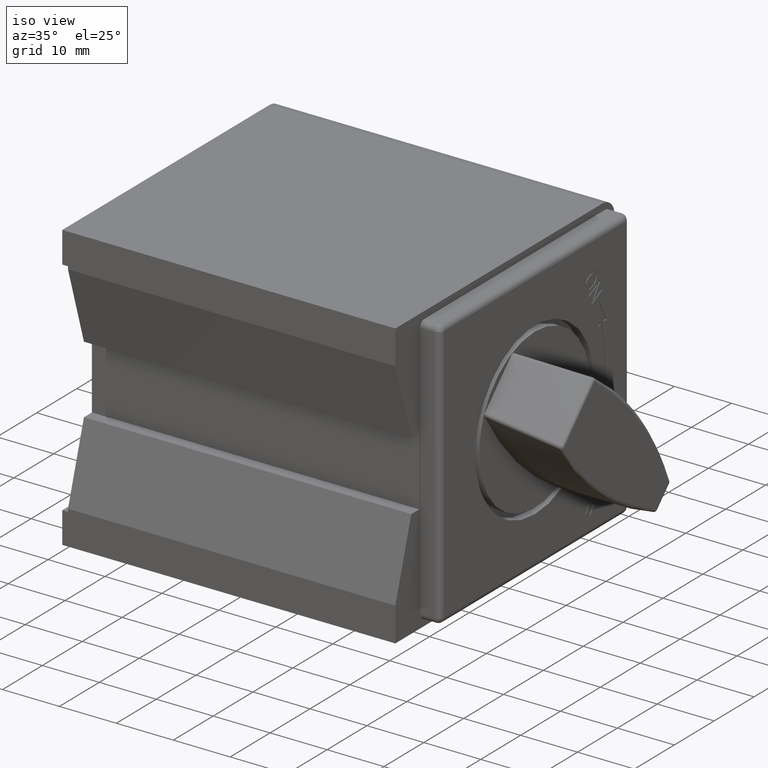
[diagram: clean part render]
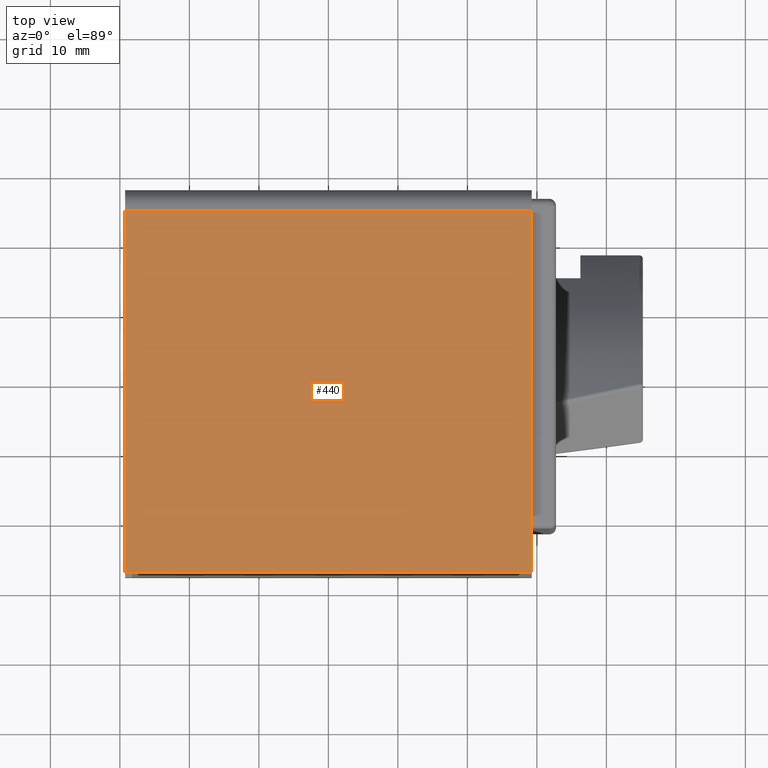
[diagram: tour spotlight — one face highlighted and labeled with its STEP entity id]
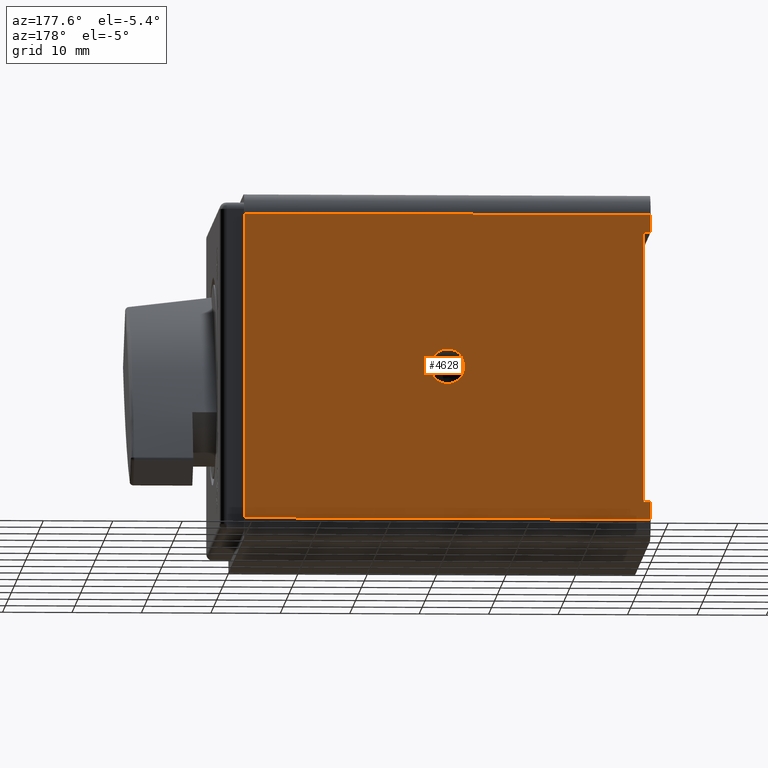
[diagram: tour spotlight — one face highlighted and labeled with its STEP entity id]
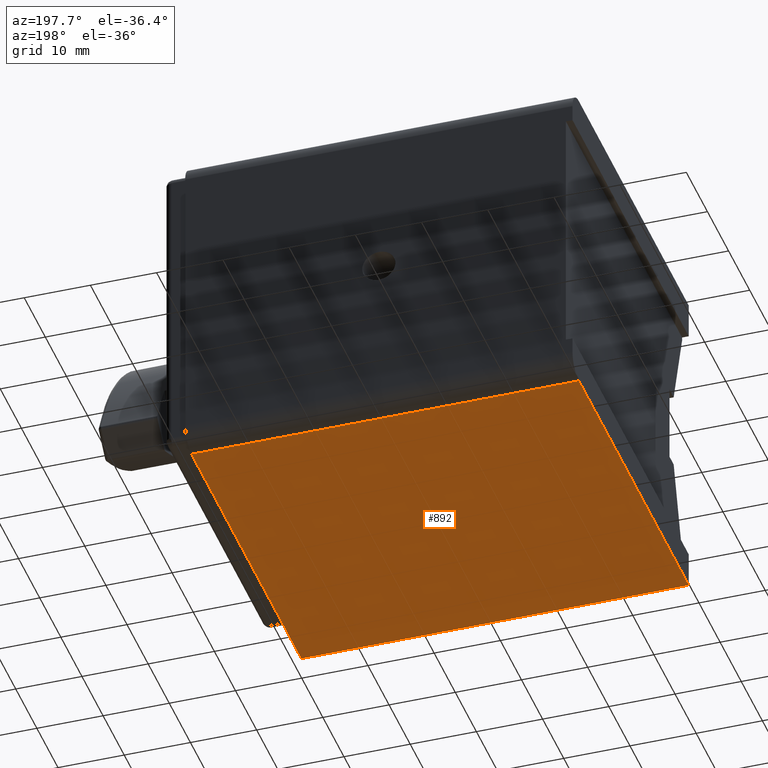
[diagram: tour spotlight — one face highlighted and labeled with its STEP entity id]
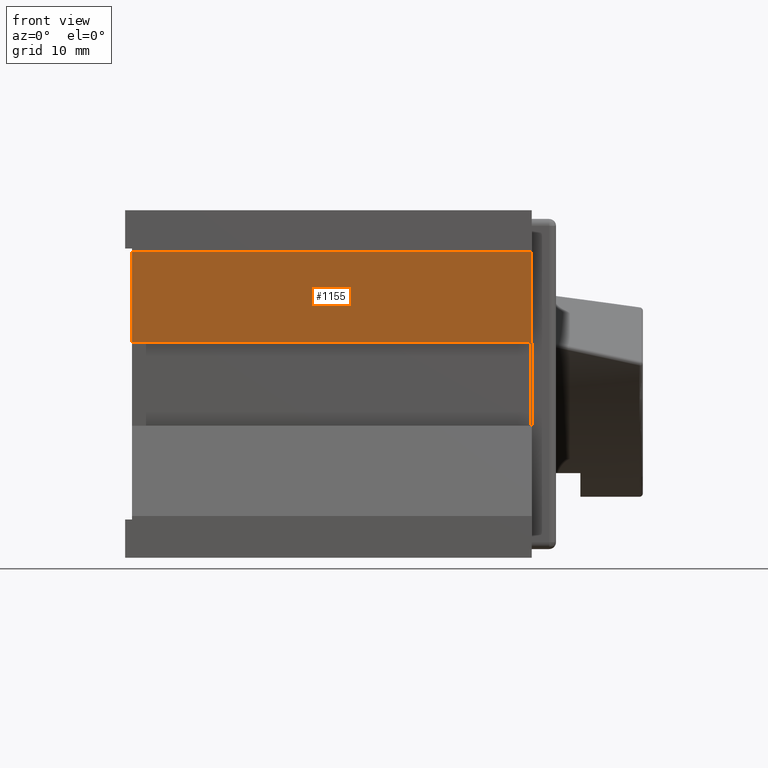
[diagram: tour spotlight — one face highlighted and labeled with its STEP entity id]
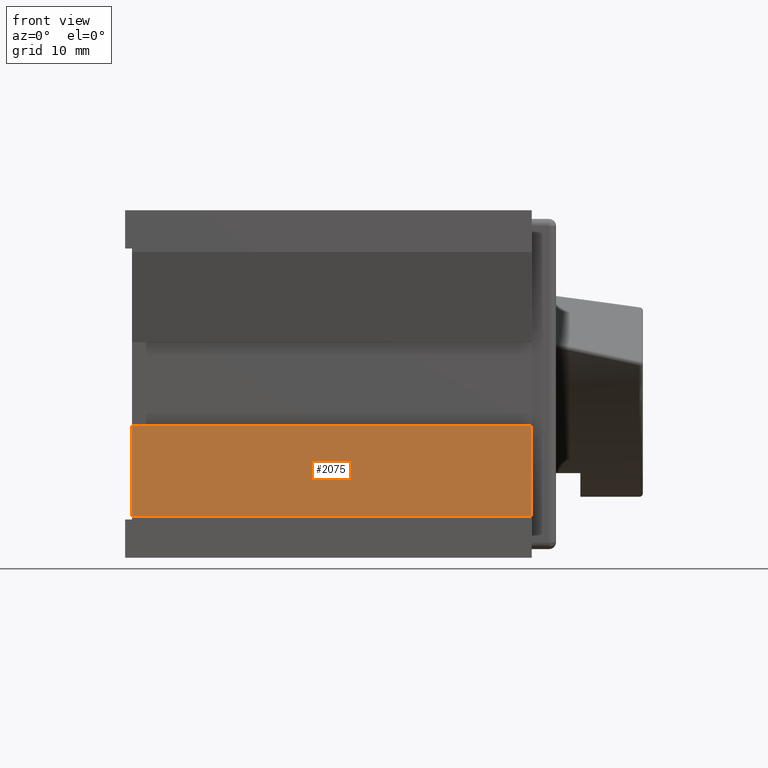
[diagram: tour spotlight — one face highlighted and labeled with its STEP entity id]
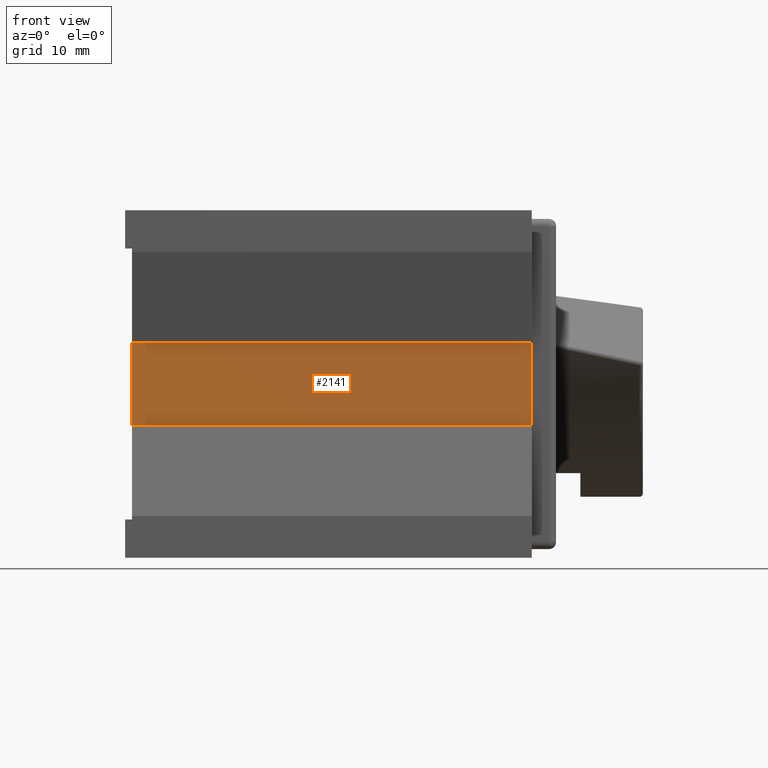
[diagram: tour spotlight — one face highlighted and labeled with its STEP entity id]
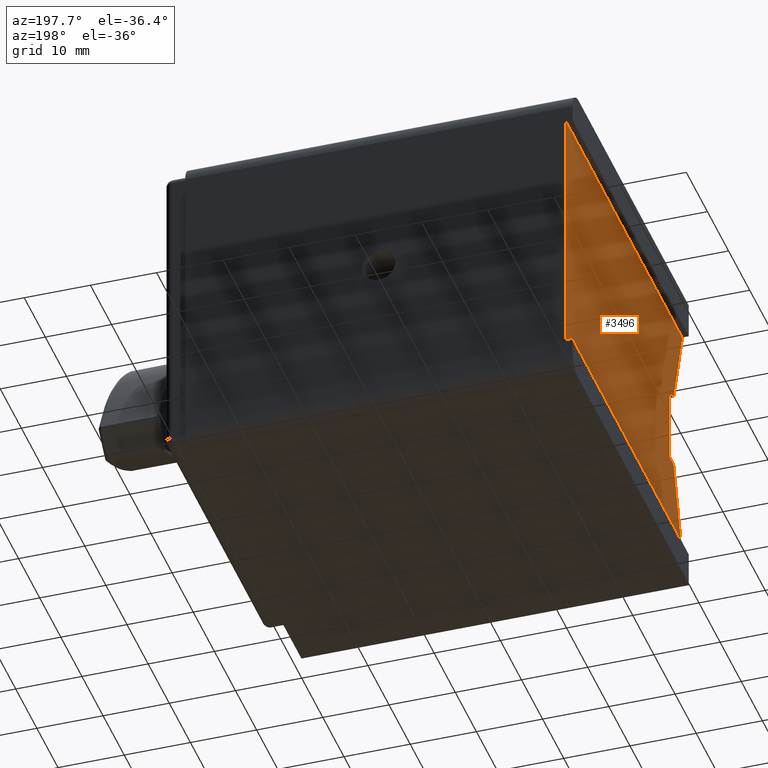
[diagram: tour spotlight — one face highlighted and labeled with its STEP entity id]
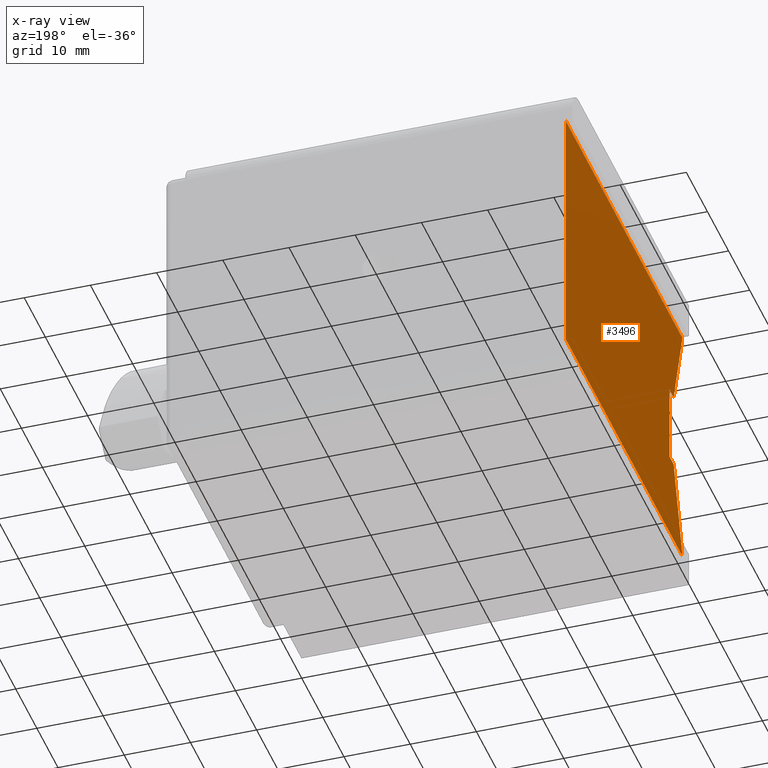
[diagram: x-ray of the same camera — body ghosted, this tour face saturated]
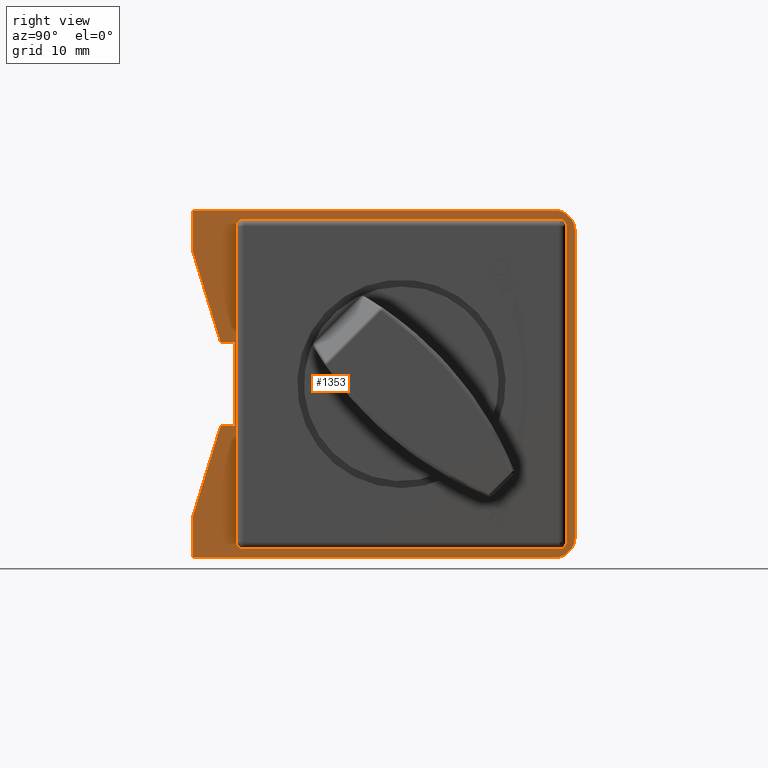
[diagram: tour spotlight — one face highlighted and labeled with its STEP entity id]
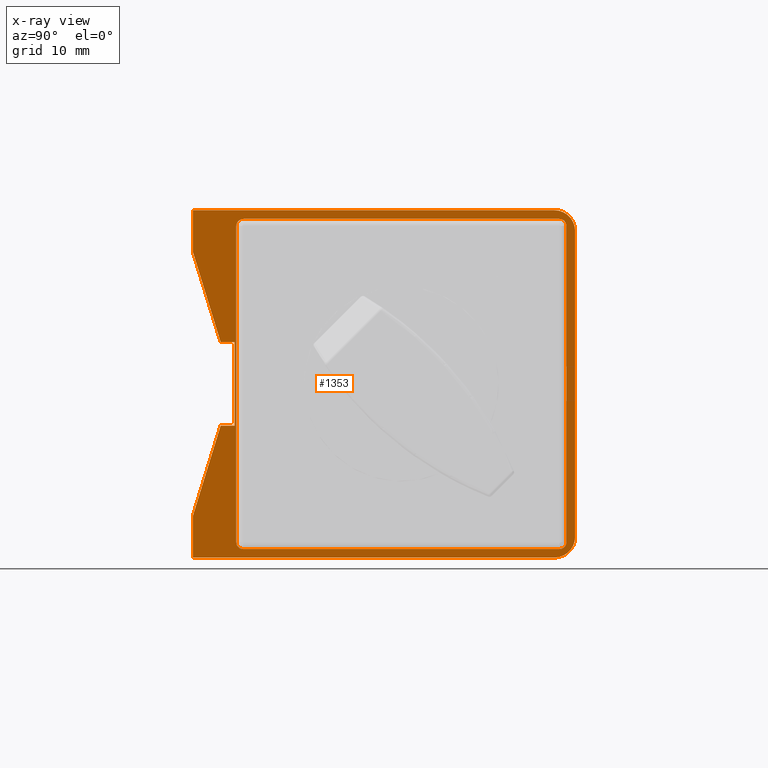
[diagram: x-ray of the same camera — body ghosted, this tour face saturated]
A machine part: a face-by-face anatomy tour. The part has 129 B-rep faces; the first image is the clean iso view, then the 8 largest visible faces are spotlighted one at a time (largest first), each with its STEP entity span.

Face 1 — top view, entity #440. In plain terms, the highlighted planar face has unit normal (0, 0, -1).
Definition (entity closure, byte-faithful):
#39 = PLANE ( 'NONE',  #5086 ) ;
#105 = EDGE_CURVE ( 'NONE', #399, #209, #779, .T. ) ;
#119 = LINE ( 'NONE', #509, #2385 ) ;
#209 = VERTEX_POINT ( 'NONE', #3312 ) ;
#353 = CARTESIAN_POINT ( 'NONE',  ( 29.25000000000001066, 24.50000000000000000, 24.99999999999999645 ) ) ;
#399 = VERTEX_POINT ( 'NONE', #2814 ) ;
#440 = ADVANCED_FACE ( 'NONE', ( #1962 ), #39, .F. ) ;
#450 = VERTEX_POINT ( 'NONE', #353 ) ;
#509 = CARTESIAN_POINT ( 'NONE',  ( -29.25000000000000000, 27.50000000000000000, 24.99999999999999645 ) ) ;
#779 = LINE ( 'NONE', #5061, #3300 ) ;
#785 = CARTESIAN_POINT ( 'NONE',  ( 29.25000000000001066, 27.50000000000000000, 24.99999999999999645 ) ) ;
#932 = EDGE_CURVE ( 'NONE', #450, #399, #4290, .T. ) ;
#1133 = EDGE_CURVE ( 'NONE', #4152, #450, #2932, .T. ) ;
#1222 = DIRECTION ( 'NONE',  ( -1.000000000000000000, 0.000000000000000000, -0.000000000000000000 ) ) ;
#1543 = DIRECTION ( 'NONE',  ( -1.000000000000000000, 0.000000000000000000, -0.000000000000000000 ) ) ;
#1678 = DIRECTION ( 'NONE',  ( 0.000000000000000000, 1.000000000000000000, 0.000000000000000000 ) ) ;
#1913 = DIRECTION ( 'NONE',  ( 0.000000000000000000, 0.000000000000000000, -1.000000000000000000 ) ) ;
#1962 = FACE_OUTER_BOUND ( 'NONE', #4597, .T. ) ;
#2385 = VECTOR ( 'NONE', #1678, 1000.000000000000000 ) ;
#2412 = ORIENTED_EDGE ( 'NONE', *, *, #105, .F. ) ;
#2814 = CARTESIAN_POINT ( 'NONE',  ( 29.25000000000001066, -27.50000000000000000, 24.99999999999999645 ) ) ;
#2861 = DIRECTION ( 'NONE',  ( 1.000000000000000000, -0.000000000000000000, 0.000000000000000000 ) ) ;
#2932 = LINE ( 'NONE', #3293, #3662 ) ;
#3123 = ORIENTED_EDGE ( 'NONE', *, *, #932, .F. ) ;
#3185 = ORIENTED_EDGE ( 'NONE', *, *, #1133, .F. ) ;
#3293 = CARTESIAN_POINT ( 'NONE',  ( -29.25000000000000000, 24.50000000000000000, 24.99999999999999645 ) ) ;
#3300 = VECTOR ( 'NONE', #1543, 1000.000000000000000 ) ;
#3312 = CARTESIAN_POINT ( 'NONE',  ( -29.25000000000000000, -27.50000000000000000, 24.99999999999999645 ) ) ;
#3517 = VECTOR ( 'NONE', #3908, 1000.000000000000000 ) ;
#3662 = VECTOR ( 'NONE', #2861, 1000.000000000000000 ) ;
#3908 = DIRECTION ( 'NONE',  ( -0.000000000000000000, -1.000000000000000000, -0.000000000000000000 ) ) ;
#3974 = EDGE_CURVE ( 'NONE', #209, #4152, #119, .T. ) ;
#4152 = VERTEX_POINT ( 'NONE', #4771 ) ;
#4290 = LINE ( 'NONE', #785, #3517 ) ;
#4342 = CARTESIAN_POINT ( 'NONE',  ( -29.25000000000000000, 27.50000000000000000, 24.99999999999999645 ) ) ;
#4597 = EDGE_LOOP ( 'NONE', ( #3185, #4750, #2412, #3123 ) ) ;
#4750 = ORIENTED_EDGE ( 'NONE', *, *, #3974, .F. ) ;
#4771 = CARTESIAN_POINT ( 'NONE',  ( -29.25000000000000000, 24.50000000000000000, 24.99999999999999645 ) ) ;
#5061 = CARTESIAN_POINT ( 'NONE',  ( -29.25000000000000000, -27.50000000000000000, 24.99999999999999645 ) ) ;
#5086 = AXIS2_PLACEMENT_3D ( 'NONE', #4342, #1913, #1222 ) ;

Face 2 — auxiliary view, entity #4628. In plain terms, the highlighted planar face has unit normal (0, 1, 0).
Definition (entity closure, byte-faithful):
#17 = EDGE_LOOP ( 'NONE', ( #4529, #1281, #3976, #1468, #850, #78, #2135, #4322 ) ) ;
#78 = ORIENTED_EDGE ( 'NONE', *, *, #506, .T. ) ;
#183 = CARTESIAN_POINT ( 'NONE',  ( -29.25000000000000000, 27.50000000000000000, -19.50000000000001066 ) ) ;
#286 = FACE_OUTER_BOUND ( 'NONE', #17, .T. ) ;
#471 = CARTESIAN_POINT ( 'NONE',  ( 29.25000000000000000, 27.50000000000000000, -25.00000000000000355 ) ) ;
#506 = EDGE_CURVE ( 'NONE', #4220, #693, #2786, .T. ) ;
#560 = CARTESIAN_POINT ( 'NONE',  ( -29.25000000000000000, 27.50000000000000000, -25.00000000000000355 ) ) ;
#562 = EDGE_CURVE ( 'NONE', #3622, #2766, #3983, .T. ) ;
#570 = EDGE_CURVE ( 'NONE', #3755, #1659, #3238, .T. ) ;
#586 = CARTESIAN_POINT ( 'NONE',  ( -28.24999999999999289, 27.50000000000000000, 19.49999999999998934 ) ) ;
#693 = VERTEX_POINT ( 'NONE', #3740 ) ;
#762 = EDGE_CURVE ( 'NONE', #1604, #1659, #1877, .T. ) ;
#850 = ORIENTED_EDGE ( 'NONE', *, *, #4617, .T. ) ;
#913 = CARTESIAN_POINT ( 'NONE',  ( -29.25000000000000000, 27.50000000000000000, 22.00000000000000000 ) ) ;
#1086 = DIRECTION ( 'NONE',  ( 0.000000000000000000, 1.000000000000000000, 0.000000000000000000 ) ) ;
#1217 = CARTESIAN_POINT ( 'NONE',  ( 0.000000000000000000, 27.50000000000000000, 21.99999999999999645 ) ) ;
#1281 = ORIENTED_EDGE ( 'NONE', *, *, #1729, .F. ) ;
#1289 = LINE ( 'NONE', #560, #4348 ) ;
#1301 = VECTOR ( 'NONE', #1333, 1000.000000000000000 ) ;
#1333 = DIRECTION ( 'NONE',  ( -1.000000000000000000, -0.000000000000000000, 0.000000000000000000 ) ) ;
#1440 = ORIENTED_EDGE ( 'NONE', *, *, #4784, .T. ) ;
#1441 = CARTESIAN_POINT ( 'NONE',  ( -29.25000000000000000, 27.50000000000000000, -22.00000000000001066 ) ) ;
#1468 = ORIENTED_EDGE ( 'NONE', *, *, #762, .F. ) ;
#1498 = DIRECTION ( 'NONE',  ( 0.000000000000000000, -0.000000000000000000, 1.000000000000000000 ) ) ;
#1604 = VERTEX_POINT ( 'NONE', #1441 ) ;
#1622 = DIRECTION ( 'NONE',  ( 1.000000000000000000, -0.000000000000000000, 0.000000000000000000 ) ) ;
#1648 = DIRECTION ( 'NONE',  ( -2.081668171172168513E-16, -0.000000000000000000, -1.000000000000000000 ) ) ;
#1659 = VERTEX_POINT ( 'NONE', #3419 ) ;
#1680 = CARTESIAN_POINT ( 'NONE',  ( -29.24999999999999645, 27.50000000000000000, 19.49999999999998934 ) ) ;
#1703 = VECTOR ( 'NONE', #1648, 1000.000000000000000 ) ;
#1711 = CARTESIAN_POINT ( 'NONE',  ( 0.000000000000000000, 27.50000000000000000, 19.49999999999998934 ) ) ;
#1712 = AXIS2_PLACEMENT_3D ( 'NONE', #3416, #1086, #4595 ) ;
#1729 = EDGE_CURVE ( 'NONE', #3755, #2988, #3503, .T. ) ;
#1788 = DIRECTION ( 'NONE',  ( 1.000000000000000000, 0.000000000000000000, 0.000000000000000000 ) ) ;
#1794 = LINE ( 'NONE', #4185, #2295 ) ;
#1849 = LINE ( 'NONE', #3444, #3686 ) ;
#1850 = CARTESIAN_POINT ( 'NONE',  ( 0.000000000000000000, 27.50000000000000000, -22.00000000000001066 ) ) ;
#1860 = DIRECTION ( 'NONE',  ( 0.000000000000000000, 0.000000000000000000, 1.000000000000000000 ) ) ;
#1877 = LINE ( 'NONE', #1850, #4654 ) ;
#2135 = ORIENTED_EDGE ( 'NONE', *, *, #2427, .T. ) ;
#2241 = CARTESIAN_POINT ( 'NONE',  ( 0.000000000000000000, 27.50000000000000000, 0.000000000000000000 ) ) ;
#2258 = FACE_BOUND ( 'NONE', #3097, .T. ) ;
#2295 = VECTOR ( 'NONE', #4989, 1000.000000000000000 ) ;
#2296 = AXIS2_PLACEMENT_3D ( 'NONE', #2241, #4635, #1860 ) ;
#2427 = EDGE_CURVE ( 'NONE', #693, #3622, #1794, .T. ) ;
#2766 = VERTEX_POINT ( 'NONE', #1680 ) ;
#2786 = LINE ( 'NONE', #3583, #4581 ) ;
#2885 = VERTEX_POINT ( 'NONE', #4440 ) ;
#2927 = DIRECTION ( 'NONE',  ( 1.387778780781445922E-16, -0.000000000000000000, 1.000000000000000000 ) ) ;
#2988 = VERTEX_POINT ( 'NONE', #913 ) ;
#3097 = EDGE_LOOP ( 'NONE', ( #1440 ) ) ;
#3238 = LINE ( 'NONE', #471, #1703 ) ;
#3416 = CARTESIAN_POINT ( 'NONE',  ( 0.000000000000000000, 27.50000000000000000, 0.000000000000000000 ) ) ;
#3419 = CARTESIAN_POINT ( 'NONE',  ( 29.25000000000000000, 27.50000000000000000, -22.00000000000001066 ) ) ;
#3444 = CARTESIAN_POINT ( 'NONE',  ( -29.25000000000000000, 27.50000000000000000, 0.000000000000000000 ) ) ;
#3503 = LINE ( 'NONE', #1217, #5007 ) ;
#3583 = CARTESIAN_POINT ( 'NONE',  ( -30.24999999999998934, 27.50000000000000000, -19.50000000000001066 ) ) ;
#3622 = VERTEX_POINT ( 'NONE', #586 ) ;
#3686 = VECTOR ( 'NONE', #1498, 1000.000000000000000 ) ;
#3740 = CARTESIAN_POINT ( 'NONE',  ( -28.24999999999999289, 27.50000000000000000, -19.50000000000001066 ) ) ;
#3755 = VERTEX_POINT ( 'NONE', #4359 ) ;
#3857 = PLANE ( 'NONE',  #1712 ) ;
#3976 = ORIENTED_EDGE ( 'NONE', *, *, #570, .T. ) ;
#3983 = LINE ( 'NONE', #1711, #1301 ) ;
#4185 = CARTESIAN_POINT ( 'NONE',  ( -28.24999999999999289, 27.50000000000000000, 0.000000000000000000 ) ) ;
#4220 = VERTEX_POINT ( 'NONE', #183 ) ;
#4322 = ORIENTED_EDGE ( 'NONE', *, *, #562, .T. ) ;
#4348 = VECTOR ( 'NONE', #2927, 1000.000000000000000 ) ;
#4359 = CARTESIAN_POINT ( 'NONE',  ( 29.25000000000001066, 27.50000000000000000, 22.00000000000000000 ) ) ;
#4440 = CARTESIAN_POINT ( 'NONE',  ( 0.000000000000000000, 27.50000000000000000, 2.499999999999998224 ) ) ;
#4529 = ORIENTED_EDGE ( 'NONE', *, *, #5077, .T. ) ;
#4581 = VECTOR ( 'NONE', #1622, 1000.000000000000000 ) ;
#4591 = CIRCLE ( 'NONE', #2296, 2.499999999999998224 ) ;
#4595 = DIRECTION ( 'NONE',  ( 0.000000000000000000, -0.000000000000000000, 1.000000000000000000 ) ) ;
#4617 = EDGE_CURVE ( 'NONE', #1604, #4220, #1849, .T. ) ;
#4628 = ADVANCED_FACE ( 'NONE', ( #286, #2258 ), #3857, .T. ) ;
#4635 = DIRECTION ( 'NONE',  ( -0.000000000000000000, -1.000000000000000000, -0.000000000000000000 ) ) ;
#4654 = VECTOR ( 'NONE', #1788, 1000.000000000000000 ) ;
#4679 = DIRECTION ( 'NONE',  ( -1.000000000000000000, 0.000000000000000000, 0.000000000000000000 ) ) ;
#4784 = EDGE_CURVE ( 'NONE', #2885, #2885, #4591, .T. ) ;
#4989 = DIRECTION ( 'NONE',  ( 0.000000000000000000, -0.000000000000000000, 1.000000000000000000 ) ) ;
#5007 = VECTOR ( 'NONE', #4679, 1000.000000000000000 ) ;
#5077 = EDGE_CURVE ( 'NONE', #2766, #2988, #1289, .T. ) ;

Face 3 — auxiliary view, entity #892. In plain terms, the highlighted planar face has unit normal (0, 0, 1).
Definition (entity closure, byte-faithful):
#77 = CARTESIAN_POINT ( 'NONE',  ( 29.25000000000000000, 24.50000000000000000, -25.00000000000000355 ) ) ;
#252 = CARTESIAN_POINT ( 'NONE',  ( -29.25000000000000000, 24.50000000000000000, -25.00000000000000355 ) ) ;
#421 = FACE_OUTER_BOUND ( 'NONE', #962, .T. ) ;
#553 = ORIENTED_EDGE ( 'NONE', *, *, #1721, .F. ) ;
#583 = EDGE_CURVE ( 'NONE', #1878, #3230, #926, .T. ) ;
#646 = EDGE_CURVE ( 'NONE', #3741, #4644, #2923, .T. ) ;
#656 = ORIENTED_EDGE ( 'NONE', *, *, #583, .T. ) ;
#694 = CARTESIAN_POINT ( 'NONE',  ( -29.25000000000000000, 24.50000000000000000, -25.00000000000000355 ) ) ;
#880 = CARTESIAN_POINT ( 'NONE',  ( -29.25000000000000000, 27.50000000000000000, -25.00000000000000355 ) ) ;
#892 = ADVANCED_FACE ( 'NONE', ( #421 ), #1928, .F. ) ;
#926 = LINE ( 'NONE', #3219, #3531 ) ;
#962 = EDGE_LOOP ( 'NONE', ( #2501, #656, #553, #2429 ) ) ;
#1141 = DIRECTION ( 'NONE',  ( 1.000000000000000000, 0.000000000000000000, -0.000000000000000000 ) ) ;
#1721 = EDGE_CURVE ( 'NONE', #4644, #3230, #3121, .T. ) ;
#1878 = VERTEX_POINT ( 'NONE', #77 ) ;
#1928 = PLANE ( 'NONE',  #3023 ) ;
#1930 = DIRECTION ( 'NONE',  ( 1.000000000000000000, 0.000000000000000000, -0.000000000000000000 ) ) ;
#2253 = DIRECTION ( 'NONE',  ( -1.000000000000000000, -0.000000000000000000, 0.000000000000000000 ) ) ;
#2277 = LINE ( 'NONE', #694, #4089 ) ;
#2389 = DIRECTION ( 'NONE',  ( 0.000000000000000000, 0.000000000000000000, 1.000000000000000000 ) ) ;
#2429 = ORIENTED_EDGE ( 'NONE', *, *, #646, .F. ) ;
#2436 = DIRECTION ( 'NONE',  ( 0.000000000000000000, -1.000000000000000000, -0.000000000000000000 ) ) ;
#2501 = ORIENTED_EDGE ( 'NONE', *, *, #4020, .F. ) ;
#2923 = LINE ( 'NONE', #880, #4415 ) ;
#3023 = AXIS2_PLACEMENT_3D ( 'NONE', #3070, #2389, #1141 ) ;
#3070 = CARTESIAN_POINT ( 'NONE',  ( -29.25000000000000000, 27.50000000000000000, -25.00000000000000355 ) ) ;
#3121 = LINE ( 'NONE', #4317, #3769 ) ;
#3219 = CARTESIAN_POINT ( 'NONE',  ( 29.25000000000000000, 27.50000000000000000, -25.00000000000000355 ) ) ;
#3230 = VERTEX_POINT ( 'NONE', #3277 ) ;
#3277 = CARTESIAN_POINT ( 'NONE',  ( 29.25000000000000000, -27.50000000000000000, -25.00000000000000355 ) ) ;
#3531 = VECTOR ( 'NONE', #4410, 1000.000000000000000 ) ;
#3741 = VERTEX_POINT ( 'NONE', #252 ) ;
#3769 = VECTOR ( 'NONE', #1930, 1000.000000000000000 ) ;
#4020 = EDGE_CURVE ( 'NONE', #1878, #3741, #2277, .T. ) ;
#4089 = VECTOR ( 'NONE', #2253, 1000.000000000000000 ) ;
#4317 = CARTESIAN_POINT ( 'NONE',  ( -29.25000000000000000, -27.50000000000000000, -25.00000000000000355 ) ) ;
#4410 = DIRECTION ( 'NONE',  ( -0.000000000000000000, -1.000000000000000000, 0.000000000000000000 ) ) ;
#4415 = VECTOR ( 'NONE', #2436, 1000.000000000000000 ) ;
#4644 = VERTEX_POINT ( 'NONE', #5015 ) ;
#5015 = CARTESIAN_POINT ( 'NONE',  ( -29.25000000000000000, -27.50000000000000000, -25.00000000000000355 ) ) ;

Face 4 — front view, entity #1155. In plain terms, the highlighted planar face has unit normal (0, 0.9558, 0.2941).
Definition (entity closure, byte-faithful):
#5 = DIRECTION ( 'NONE',  ( -1.000000000000000000, -0.000000000000000000, 0.000000000000000000 ) ) ;
#151 = VECTOR ( 'NONE', #2540, 1000.000000000000114 ) ;
#172 = VERTEX_POINT ( 'NONE', #4835 ) ;
#382 = ORIENTED_EDGE ( 'NONE', *, *, #3861, .T. ) ;
#451 = CARTESIAN_POINT ( 'NONE',  ( -28.24999999999999289, -23.49999999999999645, 5.999999999999994671 ) ) ;
#569 = FACE_OUTER_BOUND ( 'NONE', #1872, .T. ) ;
#732 = ORIENTED_EDGE ( 'NONE', *, *, #1340, .F. ) ;
#793 = LINE ( 'NONE', #1248, #1482 ) ;
#854 = VERTEX_POINT ( 'NONE', #1087 ) ;
#1082 = VERTEX_POINT ( 'NONE', #2354 ) ;
#1087 = CARTESIAN_POINT ( 'NONE',  ( 29.25000000000000711, -23.50000000000000355, 5.999999999999991118 ) ) ;
#1155 = ADVANCED_FACE ( 'NONE', ( #569 ), #4418, .F. ) ;
#1221 = AXIS2_PLACEMENT_3D ( 'NONE', #4518, #2441, #4488 ) ;
#1248 = CARTESIAN_POINT ( 'NONE',  ( -29.25000000000000711, -23.49999999999999645, 5.999999999999991118 ) ) ;
#1340 = EDGE_CURVE ( 'NONE', #854, #2563, #793, .T. ) ;
#1473 = CARTESIAN_POINT ( 'NONE',  ( 29.25000000000000711, -23.50000000000000355, 5.999999999999991118 ) ) ;
#1482 = VECTOR ( 'NONE', #2349, 1000.000000000000000 ) ;
#1872 = EDGE_LOOP ( 'NONE', ( #5025, #732, #4540, #382 ) ) ;
#2349 = DIRECTION ( 'NONE',  ( -1.000000000000000000, 5.851175400051497621E-17, 1.800361661554305538E-17 ) ) ;
#2354 = CARTESIAN_POINT ( 'NONE',  ( -28.24999999999999289, -27.49999999999999645, 19.00000000000000711 ) ) ;
#2441 = DIRECTION ( 'NONE',  ( 6.121891511172211502E-17, 0.9557790087219502073, 0.2940858488375228674 ) ) ;
#2452 = EDGE_CURVE ( 'NONE', #854, #172, #3720, .T. ) ;
#2540 = DIRECTION ( 'NONE',  ( 2.550788129655087058E-16, -0.2940858488375225344, 0.9557790087219503183 ) ) ;
#2563 = VERTEX_POINT ( 'NONE', #451 ) ;
#2879 = VECTOR ( 'NONE', #3975, 1000.000000000000114 ) ;
#3212 = CARTESIAN_POINT ( 'NONE',  ( 0.000000000000000000, -27.50000000000000000, 19.00000000000000355 ) ) ;
#3620 = LINE ( 'NONE', #3212, #4834 ) ;
#3720 = LINE ( 'NONE', #1473, #151 ) ;
#3824 = EDGE_CURVE ( 'NONE', #2563, #1082, #4724, .T. ) ;
#3861 = EDGE_CURVE ( 'NONE', #172, #1082, #3620, .T. ) ;
#3931 = CARTESIAN_POINT ( 'NONE',  ( -28.24999999999999289, -27.50000000000000000, 19.00000000000001776 ) ) ;
#3975 = DIRECTION ( 'NONE',  ( 0.000000000000000000, -0.2940858488375228119, 0.9557790087219500963 ) ) ;
#4418 = PLANE ( 'NONE',  #1221 ) ;
#4488 = DIRECTION ( 'NONE',  ( 0.000000000000000000, -0.2940858488375228119, 0.9557790087219500963 ) ) ;
#4518 = CARTESIAN_POINT ( 'NONE',  ( -29.25000000000000711, -27.50000000000000000, 19.00000000000001776 ) ) ;
#4540 = ORIENTED_EDGE ( 'NONE', *, *, #2452, .T. ) ;
#4724 = LINE ( 'NONE', #3931, #2879 ) ;
#4834 = VECTOR ( 'NONE', #5, 1000.000000000000000 ) ;
#4835 = CARTESIAN_POINT ( 'NONE',  ( 29.25000000000001066, -27.50000000000000000, 19.00000000000000355 ) ) ;
#5025 = ORIENTED_EDGE ( 'NONE', *, *, #3824, .F. ) ;

Face 5 — front view, entity #2075. In plain terms, the highlighted planar face has unit normal (-0, 0.9558, -0.2941).
Definition (entity closure, byte-faithful):
#58 = CARTESIAN_POINT ( 'NONE',  ( -28.24999999999999289, -23.50000000000000355, -5.999999999999995559 ) ) ;
#150 = VECTOR ( 'NONE', #4372, 1000.000000000000114 ) ;
#155 = VECTOR ( 'NONE', #2979, 1000.000000000000000 ) ;
#161 = CARTESIAN_POINT ( 'NONE',  ( -29.25000000000001421, -27.50000000000000000, -19.00000000000002487 ) ) ;
#170 = LINE ( 'NONE', #4561, #155 ) ;
#575 = LINE ( 'NONE', #161, #3360 ) ;
#604 = EDGE_CURVE ( 'NONE', #5048, #3603, #2056, .T. ) ;
#1012 = CARTESIAN_POINT ( 'NONE',  ( -29.25000000000001421, -27.49999999999999645, -19.00000000000001066 ) ) ;
#1099 = PLANE ( 'NONE',  #4901 ) ;
#1338 = LINE ( 'NONE', #2907, #150 ) ;
#1415 = VERTEX_POINT ( 'NONE', #2464 ) ;
#1556 = ORIENTED_EDGE ( 'NONE', *, *, #4566, .T. ) ;
#1649 = VERTEX_POINT ( 'NONE', #3742 ) ;
#1772 = DIRECTION ( 'NONE',  ( 0.000000000000000000, 0.2940858488375224788, 0.9557790087219502073 ) ) ;
#1882 = ORIENTED_EDGE ( 'NONE', *, *, #2304, .F. ) ;
#2056 = LINE ( 'NONE', #2505, #4822 ) ;
#2060 = CARTESIAN_POINT ( 'NONE',  ( 29.25000000000000711, -23.50000000000000355, -6.000000000000009770 ) ) ;
#2075 = ADVANCED_FACE ( 'NONE', ( #2270 ), #1099, .F. ) ;
#2270 = FACE_OUTER_BOUND ( 'NONE', #2554, .T. ) ;
#2304 = EDGE_CURVE ( 'NONE', #1415, #3603, #1338, .T. ) ;
#2464 = CARTESIAN_POINT ( 'NONE',  ( -28.24999999999999289, -27.50000000000000000, -19.00000000000002132 ) ) ;
#2505 = CARTESIAN_POINT ( 'NONE',  ( -29.25000000000001066, -23.50000000000000000, -5.999999999999996447 ) ) ;
#2554 = EDGE_LOOP ( 'NONE', ( #1882, #4881, #1556, #4400 ) ) ;
#2907 = CARTESIAN_POINT ( 'NONE',  ( -28.24999999999999289, -27.49999999999999645, -19.00000000000001066 ) ) ;
#2979 = DIRECTION ( 'NONE',  ( 2.550788129655087551E-16, 0.2940858488375220903, 0.9557790087219504294 ) ) ;
#3360 = VECTOR ( 'NONE', #4013, 1000.000000000000000 ) ;
#3603 = VERTEX_POINT ( 'NONE', #58 ) ;
#3742 = CARTESIAN_POINT ( 'NONE',  ( 29.25000000000000000, -27.49999999999999645, -19.00000000000002132 ) ) ;
#4013 = DIRECTION ( 'NONE',  ( -1.000000000000000000, -5.851175400051493923E-17, 1.800361661554301840E-17 ) ) ;
#4068 = DIRECTION ( 'NONE',  ( -1.000000000000000000, 0.000000000000000000, 2.081668171172168760E-16 ) ) ;
#4221 = DIRECTION ( 'NONE',  ( -6.121891511172207805E-17, 0.9557790087219503183, -0.2940858488375225344 ) ) ;
#4256 = EDGE_CURVE ( 'NONE', #1649, #1415, #575, .T. ) ;
#4372 = DIRECTION ( 'NONE',  ( 0.000000000000000000, 0.2940858488375224788, 0.9557790087219502073 ) ) ;
#4400 = ORIENTED_EDGE ( 'NONE', *, *, #604, .T. ) ;
#4561 = CARTESIAN_POINT ( 'NONE',  ( 29.25000000000000000, -27.49999999999999289, -19.00000000000002487 ) ) ;
#4566 = EDGE_CURVE ( 'NONE', #1649, #5048, #170, .T. ) ;
#4822 = VECTOR ( 'NONE', #4068, 1000.000000000000000 ) ;
#4881 = ORIENTED_EDGE ( 'NONE', *, *, #4256, .F. ) ;
#4901 = AXIS2_PLACEMENT_3D ( 'NONE', #1012, #4221, #1772 ) ;
#5048 = VERTEX_POINT ( 'NONE', #2060 ) ;

Face 6 — front view, entity #2141. In plain terms, the highlighted planar face has unit normal (0, 1, 0).
Definition (entity closure, byte-faithful):
#52 = CARTESIAN_POINT ( 'NONE',  ( -29.25000000000001066, -21.50000000000000000, 6.000000000000003553 ) ) ;
#222 = EDGE_CURVE ( 'NONE', #2267, #2904, #3336, .T. ) ;
#439 = CARTESIAN_POINT ( 'NONE',  ( 29.25000000000000000, -21.50000000000000000, -25.00000000000000355 ) ) ;
#501 = VECTOR ( 'NONE', #2826, 1000.000000000000000 ) ;
#512 = CARTESIAN_POINT ( 'NONE',  ( 29.25000000000000711, -21.50000000000000000, -6.000000000000008882 ) ) ;
#658 = PLANE ( 'NONE',  #3442 ) ;
#923 = VECTOR ( 'NONE', #978, 1000.000000000000000 ) ;
#978 = DIRECTION ( 'NONE',  ( 0.000000000000000000, -0.000000000000000000, 1.000000000000000000 ) ) ;
#1266 = EDGE_LOOP ( 'NONE', ( #3052, #3580, #1694, #1542 ) ) ;
#1382 = CARTESIAN_POINT ( 'NONE',  ( -28.24999999999999289, -21.50000000000000000, 6.000000000000003553 ) ) ;
#1449 = CARTESIAN_POINT ( 'NONE',  ( -29.25000000000001066, -21.50000000000000000, -6.000000000000008882 ) ) ;
#1542 = ORIENTED_EDGE ( 'NONE', *, *, #3853, .T. ) ;
#1694 = ORIENTED_EDGE ( 'NONE', *, *, #1939, .T. ) ;
#1924 = CARTESIAN_POINT ( 'NONE',  ( -28.24999999999999289, -21.50000000000000000, 6.000000000000002665 ) ) ;
#1939 = EDGE_CURVE ( 'NONE', #2704, #2758, #3139, .T. ) ;
#1974 = DIRECTION ( 'NONE',  ( 2.081668171172168513E-16, 0.000000000000000000, 1.000000000000000000 ) ) ;
#2117 = CARTESIAN_POINT ( 'NONE',  ( 29.25000000000001066, -21.50000000000000000, 5.999999999999991118 ) ) ;
#2141 = ADVANCED_FACE ( 'NONE', ( #4162 ), #658, .F. ) ;
#2214 = DIRECTION ( 'NONE',  ( 0.000000000000000000, -0.000000000000000000, 1.000000000000000000 ) ) ;
#2267 = VERTEX_POINT ( 'NONE', #4050 ) ;
#2627 = VECTOR ( 'NONE', #2663, 1000.000000000000000 ) ;
#2663 = DIRECTION ( 'NONE',  ( -1.000000000000000000, -0.000000000000000000, 0.000000000000000000 ) ) ;
#2704 = VERTEX_POINT ( 'NONE', #512 ) ;
#2758 = VERTEX_POINT ( 'NONE', #2117 ) ;
#2826 = DIRECTION ( 'NONE',  ( -1.000000000000000000, -0.000000000000000000, 2.081668171172168760E-16 ) ) ;
#2904 = VERTEX_POINT ( 'NONE', #1924 ) ;
#3052 = ORIENTED_EDGE ( 'NONE', *, *, #222, .F. ) ;
#3139 = LINE ( 'NONE', #439, #4755 ) ;
#3336 = LINE ( 'NONE', #1382, #923 ) ;
#3442 = AXIS2_PLACEMENT_3D ( 'NONE', #3813, #3788, #2214 ) ;
#3580 = ORIENTED_EDGE ( 'NONE', *, *, #4731, .F. ) ;
#3788 = DIRECTION ( 'NONE',  ( 0.000000000000000000, 1.000000000000000000, 0.000000000000000000 ) ) ;
#3813 = CARTESIAN_POINT ( 'NONE',  ( -29.25000000000001066, -21.50000000000000000, 6.000000000000003553 ) ) ;
#3853 = EDGE_CURVE ( 'NONE', #2758, #2904, #4748, .T. ) ;
#4050 = CARTESIAN_POINT ( 'NONE',  ( -28.24999999999999289, -21.50000000000000000, -6.000000000000005329 ) ) ;
#4159 = LINE ( 'NONE', #1449, #2627 ) ;
#4162 = FACE_OUTER_BOUND ( 'NONE', #1266, .T. ) ;
#4731 = EDGE_CURVE ( 'NONE', #2704, #2267, #4159, .T. ) ;
#4748 = LINE ( 'NONE', #52, #501 ) ;
#4755 = VECTOR ( 'NONE', #1974, 1000.000000000000000 ) ;

Face 7 — auxiliary view, entity #3496. An x-ray twin of the same camera follows (body ghosted, this face saturated) — the face is partly hidden behind the body. In plain terms, the highlighted planar face has unit normal (1, -0, 0).
Definition (entity closure, byte-faithful):
#58 = CARTESIAN_POINT ( 'NONE',  ( -28.24999999999999289, -23.50000000000000355, -5.999999999999995559 ) ) ;
#146 = ORIENTED_EDGE ( 'NONE', *, *, #4339, .T. ) ;
#150 = VECTOR ( 'NONE', #4372, 1000.000000000000114 ) ;
#222 = EDGE_CURVE ( 'NONE', #2267, #2904, #3336, .T. ) ;
#293 = DIRECTION ( 'NONE',  ( 0.000000000000000000, 0.000000000000000000, -1.000000000000000000 ) ) ;
#451 = CARTESIAN_POINT ( 'NONE',  ( -28.24999999999999289, -23.49999999999999645, 5.999999999999994671 ) ) ;
#582 = ORIENTED_EDGE ( 'NONE', *, *, #222, .T. ) ;
#586 = CARTESIAN_POINT ( 'NONE',  ( -28.24999999999999289, 27.50000000000000000, 19.49999999999998934 ) ) ;
#617 = CARTESIAN_POINT ( 'NONE',  ( -28.24999999999999289, -23.50000000000000000, -5.999999999999996447 ) ) ;
#693 = VERTEX_POINT ( 'NONE', #3740 ) ;
#734 = DIRECTION ( 'NONE',  ( 1.000000000000000000, -0.000000000000000000, 0.000000000000000000 ) ) ;
#790 = FACE_OUTER_BOUND ( 'NONE', #2712, .T. ) ;
#923 = VECTOR ( 'NONE', #978, 1000.000000000000000 ) ;
#978 = DIRECTION ( 'NONE',  ( 0.000000000000000000, -0.000000000000000000, 1.000000000000000000 ) ) ;
#1005 = CARTESIAN_POINT ( 'NONE',  ( -28.24999999999999289, -27.49999999999999645, -19.50000000000001066 ) ) ;
#1082 = VERTEX_POINT ( 'NONE', #2354 ) ;
#1338 = LINE ( 'NONE', #2907, #150 ) ;
#1372 = CARTESIAN_POINT ( 'NONE',  ( -28.24999999999999289, -27.50000000000000000, 19.49999999999998934 ) ) ;
#1382 = CARTESIAN_POINT ( 'NONE',  ( -28.24999999999999289, -21.50000000000000000, 6.000000000000003553 ) ) ;
#1415 = VERTEX_POINT ( 'NONE', #2464 ) ;
#1416 = DIRECTION ( 'NONE',  ( 0.000000000000000000, 1.000000000000000000, 0.000000000000000000 ) ) ;
#1454 = ORIENTED_EDGE ( 'NONE', *, *, #4802, .T. ) ;
#1644 = VECTOR ( 'NONE', #4040, 1000.000000000000000 ) ;
#1647 = EDGE_CURVE ( 'NONE', #2506, #1415, #4210, .T. ) ;
#1755 = ORIENTED_EDGE ( 'NONE', *, *, #1647, .T. ) ;
#1794 = LINE ( 'NONE', #4185, #2295 ) ;
#1890 = VECTOR ( 'NONE', #1416, 1000.000000000000000 ) ;
#1924 = CARTESIAN_POINT ( 'NONE',  ( -28.24999999999999289, -21.50000000000000000, 6.000000000000002665 ) ) ;
#2157 = ORIENTED_EDGE ( 'NONE', *, *, #3921, .F. ) ;
#2267 = VERTEX_POINT ( 'NONE', #4050 ) ;
#2295 = VECTOR ( 'NONE', #4989, 1000.000000000000000 ) ;
#2304 = EDGE_CURVE ( 'NONE', #1415, #3603, #1338, .T. ) ;
#2319 = PLANE ( 'NONE',  #4184 ) ;
#2322 = ORIENTED_EDGE ( 'NONE', *, *, #2304, .T. ) ;
#2354 = CARTESIAN_POINT ( 'NONE',  ( -28.24999999999999289, -27.49999999999999645, 19.00000000000000711 ) ) ;
#2398 = CARTESIAN_POINT ( 'NONE',  ( -28.24999999999999289, -27.50000000000000000, 19.49999999999998934 ) ) ;
#2427 = EDGE_CURVE ( 'NONE', #693, #3622, #1794, .T. ) ;
#2459 = DIRECTION ( 'NONE',  ( 0.000000000000000000, 1.000000000000000000, 0.000000000000000000 ) ) ;
#2464 = CARTESIAN_POINT ( 'NONE',  ( -28.24999999999999289, -27.50000000000000000, -19.00000000000002132 ) ) ;
#2506 = VERTEX_POINT ( 'NONE', #1005 ) ;
#2510 = EDGE_CURVE ( 'NONE', #3603, #2267, #4125, .T. ) ;
#2557 = ORIENTED_EDGE ( 'NONE', *, *, #3824, .T. ) ;
#2563 = VERTEX_POINT ( 'NONE', #451 ) ;
#2634 = EDGE_CURVE ( 'NONE', #2506, #693, #3642, .T. ) ;
#2666 = LINE ( 'NONE', #2691, #3615 ) ;
#2686 = CARTESIAN_POINT ( 'NONE',  ( -28.24999999999999289, -27.50000000000000000, 19.49999999999998934 ) ) ;
#2691 = CARTESIAN_POINT ( 'NONE',  ( -28.24999999999999289, -23.50000000000000000, 6.000000000000003553 ) ) ;
#2712 = EDGE_LOOP ( 'NONE', ( #1454, #4687, #2761, #1755, #2322, #4389, #582, #146, #2557, #2157 ) ) ;
#2715 = VECTOR ( 'NONE', #2459, 1000.000000000000000 ) ;
#2761 = ORIENTED_EDGE ( 'NONE', *, *, #2634, .F. ) ;
#2879 = VECTOR ( 'NONE', #3975, 1000.000000000000114 ) ;
#2896 = LINE ( 'NONE', #1372, #1644 ) ;
#2904 = VERTEX_POINT ( 'NONE', #1924 ) ;
#2907 = CARTESIAN_POINT ( 'NONE',  ( -28.24999999999999289, -27.49999999999999645, -19.00000000000001066 ) ) ;
#3283 = CARTESIAN_POINT ( 'NONE',  ( -28.24999999999999289, -27.50000000000000000, -19.50000000000001066 ) ) ;
#3336 = LINE ( 'NONE', #1382, #923 ) ;
#3487 = LINE ( 'NONE', #2686, #3768 ) ;
#3496 = ADVANCED_FACE ( 'NONE', ( #790 ), #2319, .F. ) ;
#3603 = VERTEX_POINT ( 'NONE', #58 ) ;
#3615 = VECTOR ( 'NONE', #4612, 1000.000000000000000 ) ;
#3622 = VERTEX_POINT ( 'NONE', #586 ) ;
#3642 = LINE ( 'NONE', #3283, #2715 ) ;
#3740 = CARTESIAN_POINT ( 'NONE',  ( -28.24999999999999289, 27.50000000000000000, -19.50000000000001066 ) ) ;
#3768 = VECTOR ( 'NONE', #4246, 1000.000000000000000 ) ;
#3824 = EDGE_CURVE ( 'NONE', #2563, #1082, #4724, .T. ) ;
#3864 = VECTOR ( 'NONE', #4182, 1000.000000000000000 ) ;
#3921 = EDGE_CURVE ( 'NONE', #4907, #1082, #2896, .T. ) ;
#3931 = CARTESIAN_POINT ( 'NONE',  ( -28.24999999999999289, -27.50000000000000000, 19.00000000000001776 ) ) ;
#3975 = DIRECTION ( 'NONE',  ( 0.000000000000000000, -0.2940858488375228119, 0.9557790087219500963 ) ) ;
#4040 = DIRECTION ( 'NONE',  ( 0.000000000000000000, 0.000000000000000000, -1.000000000000000000 ) ) ;
#4050 = CARTESIAN_POINT ( 'NONE',  ( -28.24999999999999289, -21.50000000000000000, -6.000000000000005329 ) ) ;
#4121 = CARTESIAN_POINT ( 'NONE',  ( -28.24999999999999289, -27.50000000000000000, 0.000000000000000000 ) ) ;
#4125 = LINE ( 'NONE', #617, #1890 ) ;
#4182 = DIRECTION ( 'NONE',  ( 0.000000000000000000, -0.000000000000000000, 1.000000000000000000 ) ) ;
#4184 = AXIS2_PLACEMENT_3D ( 'NONE', #4241, #734, #293 ) ;
#4185 = CARTESIAN_POINT ( 'NONE',  ( -28.24999999999999289, 27.50000000000000000, 0.000000000000000000 ) ) ;
#4210 = LINE ( 'NONE', #4121, #3864 ) ;
#4241 = CARTESIAN_POINT ( 'NONE',  ( -28.24999999999999289, -27.50000000000000000, 19.49999999999998934 ) ) ;
#4246 = DIRECTION ( 'NONE',  ( -0.000000000000000000, 1.000000000000000000, 0.000000000000000000 ) ) ;
#4339 = EDGE_CURVE ( 'NONE', #2904, #2563, #2666, .T. ) ;
#4372 = DIRECTION ( 'NONE',  ( 0.000000000000000000, 0.2940858488375224788, 0.9557790087219502073 ) ) ;
#4389 = ORIENTED_EDGE ( 'NONE', *, *, #2510, .T. ) ;
#4612 = DIRECTION ( 'NONE',  ( -0.000000000000000000, -1.000000000000000000, -0.000000000000000000 ) ) ;
#4687 = ORIENTED_EDGE ( 'NONE', *, *, #2427, .F. ) ;
#4724 = LINE ( 'NONE', #3931, #2879 ) ;
#4802 = EDGE_CURVE ( 'NONE', #4907, #3622, #3487, .T. ) ;
#4907 = VERTEX_POINT ( 'NONE', #2398 ) ;
#4989 = DIRECTION ( 'NONE',  ( 0.000000000000000000, -0.000000000000000000, 1.000000000000000000 ) ) ;

Face 8 — right view, entity #1353. An x-ray twin of the same camera follows (body ghosted, this face saturated) — the face is partly hidden behind the body. In plain terms, the highlighted planar face has unit normal (-1, 0, 0).
Definition (entity closure, byte-faithful):
#10 = DIRECTION ( 'NONE',  ( 2.081668171172168513E-16, 0.000000000000000000, 1.000000000000000000 ) ) ;
#13 = VECTOR ( 'NONE', #2077, 1000.000000000000000 ) ;
#19 = DIRECTION ( 'NONE',  ( -1.000000000000000000, 0.000000000000000000, 2.081668171172168513E-16 ) ) ;
#77 = CARTESIAN_POINT ( 'NONE',  ( 29.25000000000000000, 24.50000000000000000, -25.00000000000000355 ) ) ;
#79 = CARTESIAN_POINT ( 'NONE',  ( 29.25000000000000711, -20.25000000000000000, 22.74999999999999645 ) ) ;
#123 = DIRECTION ( 'NONE',  ( 0.000000000000000000, 0.000000000000000000, 1.000000000000000000 ) ) ;
#145 = CARTESIAN_POINT ( 'NONE',  ( 29.25000000000000711, 24.50000000000000000, 22.00000000000000000 ) ) ;
#151 = VECTOR ( 'NONE', #2540, 1000.000000000000114 ) ;
#155 = VECTOR ( 'NONE', #2979, 1000.000000000000000 ) ;
#170 = LINE ( 'NONE', #4561, #155 ) ;
#172 = VERTEX_POINT ( 'NONE', #4835 ) ;
#187 = EDGE_CURVE ( 'NONE', #3230, #1649, #480, .T. ) ;
#262 = EDGE_CURVE ( 'NONE', #3344, #600, #4965, .T. ) ;
#353 = CARTESIAN_POINT ( 'NONE',  ( 29.25000000000001066, 24.50000000000000000, 24.99999999999999645 ) ) ;
#399 = VERTEX_POINT ( 'NONE', #2814 ) ;
#434 = ORIENTED_EDGE ( 'NONE', *, *, #2452, .F. ) ;
#439 = CARTESIAN_POINT ( 'NONE',  ( 29.25000000000000000, -21.50000000000000000, -25.00000000000000355 ) ) ;
#449 = LINE ( 'NONE', #5067, #664 ) ;
#450 = VERTEX_POINT ( 'NONE', #353 ) ;
#469 = DIRECTION ( 'NONE',  ( 0.000000000000000000, 0.000000000000000000, 1.000000000000000000 ) ) ;
#471 = CARTESIAN_POINT ( 'NONE',  ( 29.25000000000000000, 27.50000000000000000, -25.00000000000000355 ) ) ;
#480 = LINE ( 'NONE', #2212, #2477 ) ;
#482 = ORIENTED_EDGE ( 'NONE', *, *, #2053, .F. ) ;
#512 = CARTESIAN_POINT ( 'NONE',  ( 29.25000000000000711, -21.50000000000000000, -6.000000000000008882 ) ) ;
#517 = CARTESIAN_POINT ( 'NONE',  ( 29.25000000000000711, 27.50000000000000000, 5.999999999999991118 ) ) ;
#570 = EDGE_CURVE ( 'NONE', #3755, #1659, #3238, .T. ) ;
#578 = CARTESIAN_POINT ( 'NONE',  ( 29.25000000000000000, -27.50000000000000000, -25.00000000000000355 ) ) ;
#583 = EDGE_CURVE ( 'NONE', #1878, #3230, #926, .T. ) ;
#598 = CARTESIAN_POINT ( 'NONE',  ( 29.25000000000001066, 26.25000000000000000, 22.75000000000000355 ) ) ;
#600 = VERTEX_POINT ( 'NONE', #4780 ) ;
#664 = VECTOR ( 'NONE', #10, 1000.000000000000000 ) ;
#670 = EDGE_CURVE ( 'NONE', #450, #3755, #2852, .T. ) ;
#697 = DIRECTION ( 'NONE',  ( 1.000000000000000000, -0.000000000000000000, -2.081668171172168513E-16 ) ) ;
#704 = ORIENTED_EDGE ( 'NONE', *, *, #3269, .F. ) ;
#785 = CARTESIAN_POINT ( 'NONE',  ( 29.25000000000001066, 27.50000000000000000, 24.99999999999999645 ) ) ;
#843 = CARTESIAN_POINT ( 'NONE',  ( 29.25000000000000355, 27.50000000000000000, -6.000000000000008882 ) ) ;
#854 = VERTEX_POINT ( 'NONE', #1087 ) ;
#874 = VERTEX_POINT ( 'NONE', #2005 ) ;
#926 = LINE ( 'NONE', #3219, #3531 ) ;
#930 = CARTESIAN_POINT ( 'NONE',  ( 29.25000000000000000, -20.25000000000000000, -22.75000000000000000 ) ) ;
#932 = EDGE_CURVE ( 'NONE', #450, #399, #4290, .T. ) ;
#956 = ORIENTED_EDGE ( 'NONE', *, *, #932, .T. ) ;
#1020 = ORIENTED_EDGE ( 'NONE', *, *, #1552, .F. ) ;
#1087 = CARTESIAN_POINT ( 'NONE',  ( 29.25000000000000711, -23.50000000000000355, 5.999999999999991118 ) ) ;
#1115 = ORIENTED_EDGE ( 'NONE', *, *, #2106, .F. ) ;
#1204 = PLANE ( 'NONE',  #4495 ) ;
#1235 = DIRECTION ( 'NONE',  ( 0.000000000000000000, 0.000000000000000000, -1.000000000000000000 ) ) ;
#1242 = CARTESIAN_POINT ( 'NONE',  ( 29.25000000000001066, -21.25000000000000000, 22.74999999999999645 ) ) ;
#1328 = CARTESIAN_POINT ( 'NONE',  ( 29.25000000000000000, -21.25000000000000000, -25.00000000000000355 ) ) ;
#1353 = ADVANCED_FACE ( 'NONE', ( #3604, #3539 ), #1204, .F. ) ;
#1379 = ORIENTED_EDGE ( 'NONE', *, *, #583, .F. ) ;
#1400 = VECTOR ( 'NONE', #4496, 1000.000000000000000 ) ;
#1412 = EDGE_LOOP ( 'NONE', ( #2669, #4961, #1842, #956, #704, #434, #1020, #3090, #1527, #5003, #3645, #1379 ) ) ;
#1473 = CARTESIAN_POINT ( 'NONE',  ( 29.25000000000000711, -23.50000000000000355, 5.999999999999991118 ) ) ;
#1481 = LINE ( 'NONE', #2185, #3126 ) ;
#1527 = ORIENTED_EDGE ( 'NONE', *, *, #4911, .F. ) ;
#1552 = EDGE_CURVE ( 'NONE', #2758, #854, #4845, .T. ) ;
#1583 = DIRECTION ( 'NONE',  ( 2.081668171172168513E-16, 0.000000000000000000, 1.000000000000000000 ) ) ;
#1623 = ORIENTED_EDGE ( 'NONE', *, *, #262, .F. ) ;
#1638 = DIRECTION ( 'NONE',  ( -1.000000000000000000, -0.000000000000000000, -0.000000000000000000 ) ) ;
#1648 = DIRECTION ( 'NONE',  ( -2.081668171172168513E-16, -0.000000000000000000, -1.000000000000000000 ) ) ;
#1649 = VERTEX_POINT ( 'NONE', #3742 ) ;
#1659 = VERTEX_POINT ( 'NONE', #3419 ) ;
#1664 = LINE ( 'NONE', #1328, #2944 ) ;
#1689 = AXIS2_PLACEMENT_3D ( 'NONE', #145, #3626, #123 ) ;
#1702 = EDGE_CURVE ( 'NONE', #4999, #2045, #449, .T. ) ;
#1703 = VECTOR ( 'NONE', #1648, 1000.000000000000000 ) ;
#1705 = CIRCLE ( 'NONE', #4586, 1.000000000000000888 ) ;
#1805 = DIRECTION ( 'NONE',  ( -0.000000000000000000, -1.000000000000000000, 0.000000000000000000 ) ) ;
#1842 = ORIENTED_EDGE ( 'NONE', *, *, #670, .F. ) ;
#1878 = VERTEX_POINT ( 'NONE', #77 ) ;
#1908 = ORIENTED_EDGE ( 'NONE', *, *, #1702, .F. ) ;
#1939 = EDGE_CURVE ( 'NONE', #2704, #2758, #3139, .T. ) ;
#1974 = DIRECTION ( 'NONE',  ( 2.081668171172168513E-16, 0.000000000000000000, 1.000000000000000000 ) ) ;
#2005 = CARTESIAN_POINT ( 'NONE',  ( 29.25000000000000711, -20.25000000000000000, 23.75000000000000000 ) ) ;
#2045 = VERTEX_POINT ( 'NONE', #598 ) ;
#2053 = EDGE_CURVE ( 'NONE', #2527, #874, #1481, .T. ) ;
#2060 = CARTESIAN_POINT ( 'NONE',  ( 29.25000000000000711, -23.50000000000000355, -6.000000000000009770 ) ) ;
#2077 = DIRECTION ( 'NONE',  ( -0.000000000000000000, -1.000000000000000000, 0.000000000000000000 ) ) ;
#2106 = EDGE_CURVE ( 'NONE', #4201, #4999, #5004, .T. ) ;
#2112 = LINE ( 'NONE', #578, #1400 ) ;
#2114 = AXIS2_PLACEMENT_3D ( 'NONE', #3725, #3056, #3024 ) ;
#2117 = CARTESIAN_POINT ( 'NONE',  ( 29.25000000000001066, -21.50000000000000000, 5.999999999999991118 ) ) ;
#2149 = DIRECTION ( 'NONE',  ( 0.000000000000000000, 0.000000000000000000, 1.000000000000000000 ) ) ;
#2185 = CARTESIAN_POINT ( 'NONE',  ( 29.25000000000001066, 27.50000000000000000, 23.75000000000000355 ) ) ;
#2212 = CARTESIAN_POINT ( 'NONE',  ( 29.25000000000000000, -27.50000000000000000, -25.00000000000000355 ) ) ;
#2239 = ORIENTED_EDGE ( 'NONE', *, *, #2657, .F. ) ;
#2287 = EDGE_LOOP ( 'NONE', ( #1623, #2239, #4600, #482, #3141, #1908, #1115, #3309 ) ) ;
#2378 = AXIS2_PLACEMENT_3D ( 'NONE', #79, #2900, #469 ) ;
#2448 = DIRECTION ( 'NONE',  ( 2.081668171172168513E-16, 0.000000000000000000, 1.000000000000000000 ) ) ;
#2452 = EDGE_CURVE ( 'NONE', #854, #172, #3720, .T. ) ;
#2461 = EDGE_CURVE ( 'NONE', #600, #4201, #3367, .T. ) ;
#2477 = VECTOR ( 'NONE', #2448, 1000.000000000000000 ) ;
#2527 = VERTEX_POINT ( 'NONE', #2784 ) ;
#2540 = DIRECTION ( 'NONE',  ( 2.550788129655087058E-16, -0.2940858488375225344, 0.9557790087219503183 ) ) ;
#2566 = DIRECTION ( 'NONE',  ( 1.000000000000000000, -0.000000000000000000, -2.081668171172168513E-16 ) ) ;
#2609 = EDGE_CURVE ( 'NONE', #874, #2760, #4908, .T. ) ;
#2657 = EDGE_CURVE ( 'NONE', #2760, #3344, #1664, .T. ) ;
#2669 = ORIENTED_EDGE ( 'NONE', *, *, #3838, .F. ) ;
#2704 = VERTEX_POINT ( 'NONE', #512 ) ;
#2724 = AXIS2_PLACEMENT_3D ( 'NONE', #3523, #1638, #1235 ) ;
#2758 = VERTEX_POINT ( 'NONE', #2117 ) ;
#2760 = VERTEX_POINT ( 'NONE', #1242 ) ;
#2784 = CARTESIAN_POINT ( 'NONE',  ( 29.25000000000001066, 25.24999999999999645, 23.75000000000000355 ) ) ;
#2793 = EDGE_CURVE ( 'NONE', #2045, #2527, #1705, .T. ) ;
#2814 = CARTESIAN_POINT ( 'NONE',  ( 29.25000000000001066, -27.50000000000000000, 24.99999999999999645 ) ) ;
#2852 = CIRCLE ( 'NONE', #1689, 2.999999999999999112 ) ;
#2868 = VECTOR ( 'NONE', #4929, 1000.000000000000000 ) ;
#2875 = VECTOR ( 'NONE', #3567, 1000.000000000000000 ) ;
#2900 = DIRECTION ( 'NONE',  ( 1.000000000000000000, -0.000000000000000000, -2.081668171172168513E-16 ) ) ;
#2944 = VECTOR ( 'NONE', #4456, 1000.000000000000000 ) ;
#2979 = DIRECTION ( 'NONE',  ( 2.550788129655087551E-16, 0.2940858488375220903, 0.9557790087219504294 ) ) ;
#3024 = DIRECTION ( 'NONE',  ( 0.000000000000000000, 0.000000000000000000, 1.000000000000000000 ) ) ;
#3056 = DIRECTION ( 'NONE',  ( 1.000000000000000000, -0.000000000000000000, -2.081668171172168513E-16 ) ) ;
#3090 = ORIENTED_EDGE ( 'NONE', *, *, #1939, .F. ) ;
#3126 = VECTOR ( 'NONE', #1805, 1000.000000000000000 ) ;
#3138 = CIRCLE ( 'NONE', #2724, 2.999999999999999112 ) ;
#3139 = LINE ( 'NONE', #439, #4755 ) ;
#3141 = ORIENTED_EDGE ( 'NONE', *, *, #2793, .F. ) ;
#3219 = CARTESIAN_POINT ( 'NONE',  ( 29.25000000000000000, 27.50000000000000000, -25.00000000000000355 ) ) ;
#3230 = VERTEX_POINT ( 'NONE', #3277 ) ;
#3238 = LINE ( 'NONE', #471, #1703 ) ;
#3269 = EDGE_CURVE ( 'NONE', #172, #399, #2112, .T. ) ;
#3277 = CARTESIAN_POINT ( 'NONE',  ( 29.25000000000000000, -27.50000000000000000, -25.00000000000000355 ) ) ;
#3309 = ORIENTED_EDGE ( 'NONE', *, *, #2461, .F. ) ;
#3344 = VERTEX_POINT ( 'NONE', #3368 ) ;
#3367 = LINE ( 'NONE', #4100, #2868 ) ;
#3368 = CARTESIAN_POINT ( 'NONE',  ( 29.25000000000000000, -21.25000000000000000, -22.75000000000000000 ) ) ;
#3419 = CARTESIAN_POINT ( 'NONE',  ( 29.25000000000000000, 27.50000000000000000, -22.00000000000001066 ) ) ;
#3517 = VECTOR ( 'NONE', #3908, 1000.000000000000000 ) ;
#3523 = CARTESIAN_POINT ( 'NONE',  ( 29.25000000000000000, 24.50000000000000000, -22.00000000000001066 ) ) ;
#3531 = VECTOR ( 'NONE', #4410, 1000.000000000000000 ) ;
#3539 = FACE_OUTER_BOUND ( 'NONE', #1412, .T. ) ;
#3567 = DIRECTION ( 'NONE',  ( 0.000000000000000000, 1.000000000000000000, -0.000000000000000000 ) ) ;
#3604 = FACE_BOUND ( 'NONE', #2287, .T. ) ;
#3626 = DIRECTION ( 'NONE',  ( -1.000000000000000000, 0.000000000000000000, 0.000000000000000000 ) ) ;
#3645 = ORIENTED_EDGE ( 'NONE', *, *, #187, .F. ) ;
#3691 = CARTESIAN_POINT ( 'NONE',  ( 29.25000000000000711, 25.24999999999999645, 22.75000000000000355 ) ) ;
#3720 = LINE ( 'NONE', #1473, #151 ) ;
#3725 = CARTESIAN_POINT ( 'NONE',  ( 29.25000000000000000, 25.24999999999999645, -22.74999999999999645 ) ) ;
#3742 = CARTESIAN_POINT ( 'NONE',  ( 29.25000000000000000, -27.49999999999999645, -19.00000000000002132 ) ) ;
#3755 = VERTEX_POINT ( 'NONE', #4359 ) ;
#3838 = EDGE_CURVE ( 'NONE', #1659, #1878, #3138, .T. ) ;
#3904 = AXIS2_PLACEMENT_3D ( 'NONE', #930, #2566, #2149 ) ;
#3908 = DIRECTION ( 'NONE',  ( -0.000000000000000000, -1.000000000000000000, -0.000000000000000000 ) ) ;
#3945 = LINE ( 'NONE', #843, #2875 ) ;
#4100 = CARTESIAN_POINT ( 'NONE',  ( 29.25000000000000000, 27.50000000000000000, -23.75000000000000000 ) ) ;
#4108 = CARTESIAN_POINT ( 'NONE',  ( 29.25000000000000000, 25.24999999999999645, -23.75000000000000000 ) ) ;
#4201 = VERTEX_POINT ( 'NONE', #4108 ) ;
#4290 = LINE ( 'NONE', #785, #3517 ) ;
#4359 = CARTESIAN_POINT ( 'NONE',  ( 29.25000000000001066, 27.50000000000000000, 22.00000000000000000 ) ) ;
#4410 = DIRECTION ( 'NONE',  ( -0.000000000000000000, -1.000000000000000000, 0.000000000000000000 ) ) ;
#4456 = DIRECTION ( 'NONE',  ( -2.081668171172168513E-16, -0.000000000000000000, -1.000000000000000000 ) ) ;
#4495 = AXIS2_PLACEMENT_3D ( 'NONE', #4734, #19, #1583 ) ;
#4496 = DIRECTION ( 'NONE',  ( 2.081668171172168513E-16, 0.000000000000000000, 1.000000000000000000 ) ) ;
#4561 = CARTESIAN_POINT ( 'NONE',  ( 29.25000000000000000, -27.49999999999999289, -19.00000000000002487 ) ) ;
#4566 = EDGE_CURVE ( 'NONE', #1649, #5048, #170, .T. ) ;
#4586 = AXIS2_PLACEMENT_3D ( 'NONE', #3691, #697, #4979 ) ;
#4600 = ORIENTED_EDGE ( 'NONE', *, *, #2609, .F. ) ;
#4734 = CARTESIAN_POINT ( 'NONE',  ( 29.25000000000000000, 27.50000000000000000, -25.00000000000000355 ) ) ;
#4755 = VECTOR ( 'NONE', #1974, 1000.000000000000000 ) ;
#4780 = CARTESIAN_POINT ( 'NONE',  ( 29.25000000000000000, -20.25000000000000000, -23.75000000000000000 ) ) ;
#4820 = CARTESIAN_POINT ( 'NONE',  ( 29.25000000000000000, 26.25000000000000000, -22.74999999999999645 ) ) ;
#4835 = CARTESIAN_POINT ( 'NONE',  ( 29.25000000000001066, -27.50000000000000000, 19.00000000000000355 ) ) ;
#4845 = LINE ( 'NONE', #517, #13 ) ;
#4908 = CIRCLE ( 'NONE', #2378, 1.000000000000000888 ) ;
#4911 = EDGE_CURVE ( 'NONE', #5048, #2704, #3945, .T. ) ;
#4929 = DIRECTION ( 'NONE',  ( 0.000000000000000000, 1.000000000000000000, -0.000000000000000000 ) ) ;
#4961 = ORIENTED_EDGE ( 'NONE', *, *, #570, .F. ) ;
#4965 = CIRCLE ( 'NONE', #3904, 1.000000000000000888 ) ;
#4979 = DIRECTION ( 'NONE',  ( 0.000000000000000000, 0.000000000000000000, 1.000000000000000000 ) ) ;
#4999 = VERTEX_POINT ( 'NONE', #4820 ) ;
#5003 = ORIENTED_EDGE ( 'NONE', *, *, #4566, .F. ) ;
#5004 = CIRCLE ( 'NONE', #2114, 1.000000000000000888 ) ;
#5048 = VERTEX_POINT ( 'NONE', #2060 ) ;
#5067 = CARTESIAN_POINT ( 'NONE',  ( 29.25000000000000000, 26.25000000000000000, -25.00000000000000355 ) ) ;